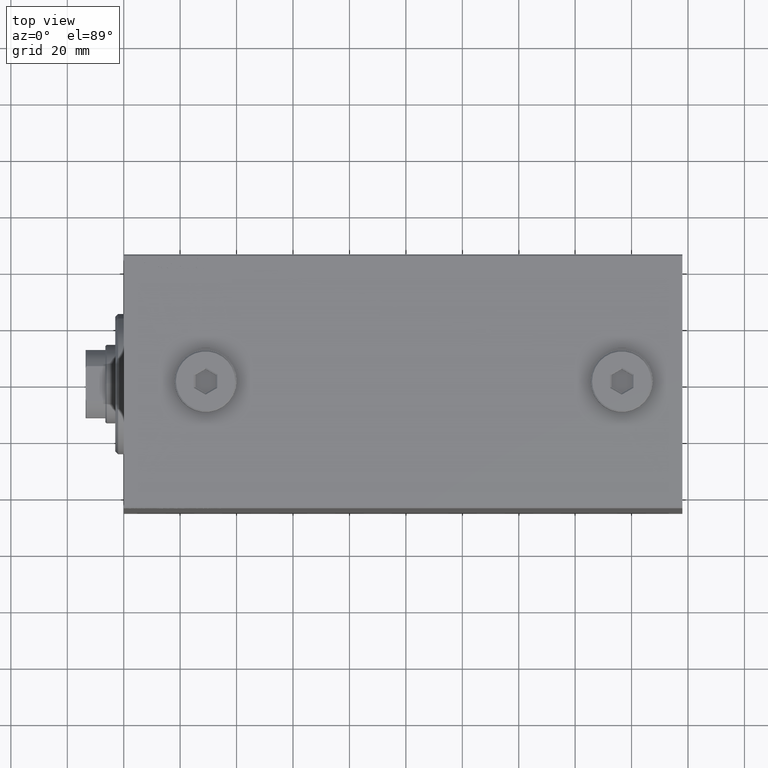
[diagram: clean part render]
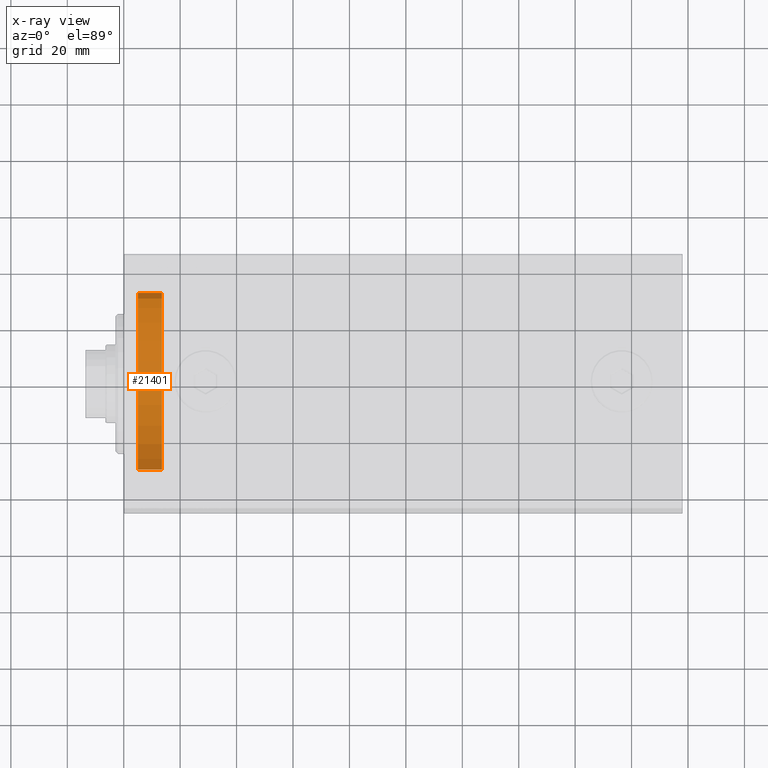
[diagram: x-ray — body ghosted, one internal face saturated and labeled with its STEP entity id]
A machine part, top view, then the same camera in x-ray: the body is ghosted and one INTERNAL B-rep face — a face not visible from any outside direction — is saturated and labeled: STEP entity #21401.
In plain terms, the highlighted cylindrical surface (partial cylindrical patch) has radius 32.5 mm, axis along (-1, 0, 0).
Its self-contained STEP definition (entity closure, byte-faithful):
#1220 = AXIS2_PLACEMENT_3D ( 'NONE', #40493, #19865, #26513 ) ;
#2668 = VERTEX_POINT ( 'NONE', #39150 ) ;
#3425 = AXIS2_PLACEMENT_3D ( 'NONE', #7645, #35616, #45008 ) ;
#3591 = EDGE_LOOP ( 'NONE', ( #34482, #40102, #11099, #26930 ) ) ;
#6720 = VECTOR ( 'NONE', #22120, 1000.000000000000000 ) ;
#6764 = LINE ( 'NONE', #42507, #6720 ) ;
#7645 = CARTESIAN_POINT ( 'NONE',  ( -13.50000000000000178, 0.000000000000000000, 0.000000000000000000 ) ) ;
#9251 = CIRCLE ( 'NONE', #1220, 32.50000000000000000 ) ;
#10729 = AXIS2_PLACEMENT_3D ( 'NONE', #43852, #12680, #43623 ) ;
#11099 = ORIENTED_EDGE ( 'NONE', *, *, #25032, .T. ) ;
#12680 = DIRECTION ( 'NONE',  ( 1.000000000000000000, -0.000000000000000000, -0.000000000000000000 ) ) ;
#12697 = DIRECTION ( 'NONE',  ( 1.000000000000000000, -0.000000000000000000, -0.000000000000000000 ) ) ;
#15675 = CARTESIAN_POINT ( 'NONE',  ( -5.000000000000000000, 0.000000000000000000, -32.50000000000000000 ) ) ;
#19784 = FACE_OUTER_BOUND ( 'NONE', #3591, .T. ) ;
#19865 = DIRECTION ( 'NONE',  ( -1.000000000000000000, 0.000000000000000000, 0.000000000000000000 ) ) ;
#20704 = CARTESIAN_POINT ( 'NONE',  ( -13.50000000000000178, 3.980102097228898626E-15, 32.50000000000000000 ) ) ;
#21401 = ADVANCED_FACE ( 'NONE', ( #19784 ), #29648, .T. ) ;
#22120 = DIRECTION ( 'NONE',  ( 1.000000000000000000, -0.000000000000000000, -0.000000000000000000 ) ) ;
#25032 = EDGE_CURVE ( 'NONE', #2668, #43849, #9251, .T. ) ;
#26263 = EDGE_CURVE ( 'NONE', #29525, #37544, #42215, .T. ) ;
#26513 = DIRECTION ( 'NONE',  ( 0.000000000000000000, 0.000000000000000000, 1.000000000000000000 ) ) ;
#26930 = ORIENTED_EDGE ( 'NONE', *, *, #39922, .F. ) ;
#29525 = VERTEX_POINT ( 'NONE', #20704 ) ;
#29648 = CYLINDRICAL_SURFACE ( 'NONE', #10729, 32.50000000000000000 ) ;
#30115 = LINE ( 'NONE', #44094, #39555 ) ;
#34482 = ORIENTED_EDGE ( 'NONE', *, *, #26263, .F. ) ;
#35616 = DIRECTION ( 'NONE',  ( -1.000000000000000000, 0.000000000000000000, 0.000000000000000000 ) ) ;
#37544 = VERTEX_POINT ( 'NONE', #43784 ) ;
#39150 = CARTESIAN_POINT ( 'NONE',  ( -5.000000000000000000, 3.980102097228898626E-15, 32.50000000000000000 ) ) ;
#39555 = VECTOR ( 'NONE', #12697, 1000.000000000000000 ) ;
#39922 = EDGE_CURVE ( 'NONE', #37544, #43849, #30115, .T. ) ;
#40102 = ORIENTED_EDGE ( 'NONE', *, *, #43252, .T. ) ;
#40493 = CARTESIAN_POINT ( 'NONE',  ( -5.000000000000000000, 0.000000000000000000, 0.000000000000000000 ) ) ;
#42215 = CIRCLE ( 'NONE', #3425, 32.50000000000000000 ) ;
#42507 = CARTESIAN_POINT ( 'NONE',  ( -13.50000000000000178, 3.980102097228898626E-15, 32.50000000000000000 ) ) ;
#43252 = EDGE_CURVE ( 'NONE', #29525, #2668, #6764, .T. ) ;
#43623 = DIRECTION ( 'NONE',  ( 0.000000000000000000, 0.000000000000000000, -1.000000000000000000 ) ) ;
#43784 = CARTESIAN_POINT ( 'NONE',  ( -13.50000000000000178, 0.000000000000000000, -32.50000000000000000 ) ) ;
#43849 = VERTEX_POINT ( 'NONE', #15675 ) ;
#43852 = CARTESIAN_POINT ( 'NONE',  ( -13.50000000000000178, 0.000000000000000000, 0.000000000000000000 ) ) ;
#44094 = CARTESIAN_POINT ( 'NONE',  ( -13.50000000000000178, 0.000000000000000000, -32.50000000000000000 ) ) ;
#45008 = DIRECTION ( 'NONE',  ( 0.000000000000000000, 0.000000000000000000, 1.000000000000000000 ) ) ;